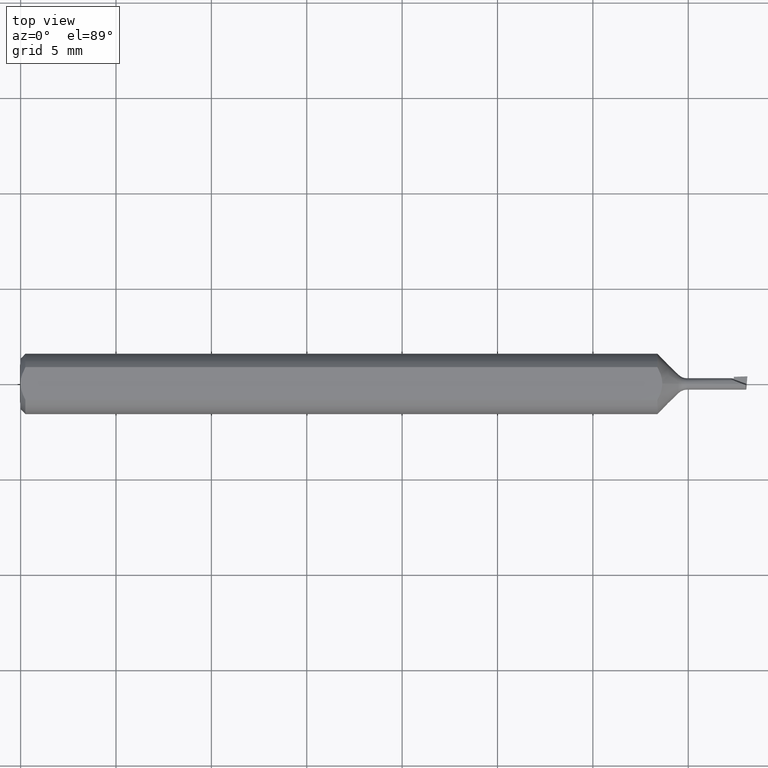
[diagram: clean part render]
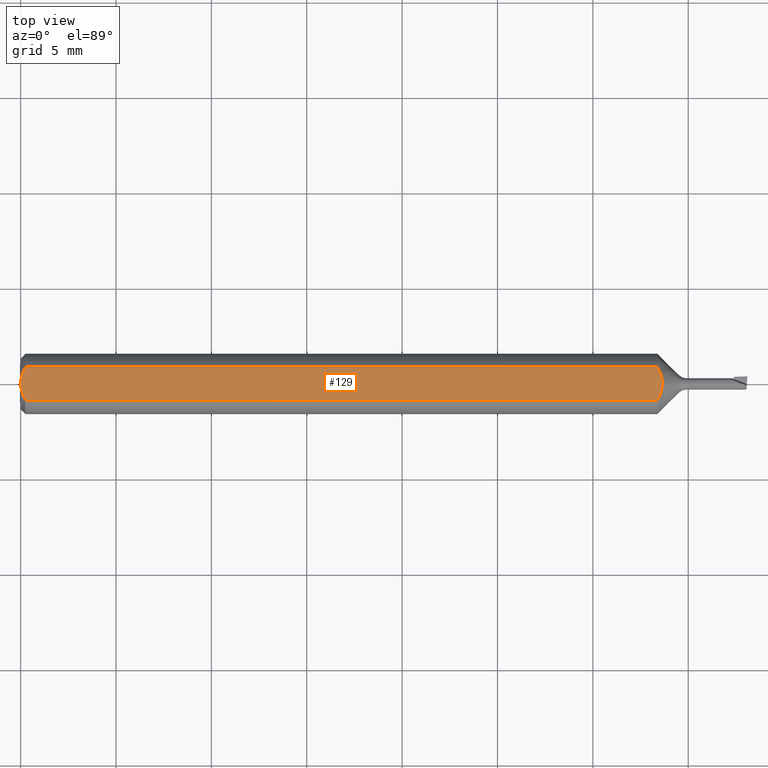
[diagram: same view with one face highlighted and labeled with its STEP entity id]
A machine part, top view. The second image highlights one B-rep face of the part: STEP entity #129.
In plain terms, the highlighted planar face has unit normal (0, 0, -1).
Its self-contained STEP definition (entity closure, byte-faithful):
#17 = EDGE_CURVE ( 'NONE', #702, #86, #183, .T. ) ;
#18 = LINE ( 'NONE', #247, #237 ) ;
#31 = ORIENTED_EDGE ( 'NONE', *, *, #471, .F. ) ;
#34 = CARTESIAN_POINT ( 'NONE',  ( 0.001055043921644571291, -0.01186408073217194367, 0.05235000000000002152 ) ) ;
#65 = CARTESIAN_POINT ( 'NONE',  ( 0.01000000000000839627, -0.03386738844395137393, 0.05235000000000001458 ) ) ;
#86 = VERTEX_POINT ( 'NONE', #379 ) ;
#90 = ORIENTED_EDGE ( 'NONE', *, *, #448, .F. ) ;
#96 = CARTESIAN_POINT ( 'NONE',  ( 0.000000000000000000, 0.03386738844375218604, 0.05235000000000001458 ) ) ;
#105 = ORIENTED_EDGE ( 'NONE', *, *, #218, .T. ) ;
#109 = CARTESIAN_POINT ( 'NONE',  ( 1.323328875033864538, 0.01191462272770363318, 0.05235000000000001458 ) ) ;
#113 = CARTESIAN_POINT ( 'NONE',  ( 1.324399999999999578, 0.005921331895061767055, 0.05235000000000002152 ) ) ;
#124 = B_SPLINE_CURVE_WITH_KNOTS ( 'NONE', 3,
 ( #452, #278, #241, #346, #499, #233 ),
 .UNSPECIFIED., .F., .F.,
 ( 4, 2, 4 ),
 ( 0.0009229516234078819371, 0.001371626545108044562, 0.001820301466808206970 ),
 .UNSPECIFIED. ) ;
#126 = PLANE ( 'NONE',  #396 ) ;
#129 = ADVANCED_FACE ( 'NONE', ( #449 ), #126, .F. ) ;
#141 = CARTESIAN_POINT ( 'NONE',  ( 0.004679365186825696840, -0.02325953974091124130, 0.05235000000000001458 ) ) ;
#145 = VERTEX_POINT ( 'NONE', #549 ) ;
#161 = CARTESIAN_POINT ( 'NONE',  ( 1.317245553868476193, 0.02862871218756115124, 0.05235000000000002152 ) ) ;
#183 = B_SPLINE_CURVE_WITH_KNOTS ( 'NONE', 3,
 ( #645, #161, #542, #109, #113, #539 ),
 .UNSPECIFIED., .F., .F.,
 ( 4, 2, 4 ),
 ( 0.002138043958543064428, 0.002587078562153630537, 0.003036113165764197080 ),
 .UNSPECIFIED. ) ;
#192 = DIRECTION ( 'NONE',  ( -1.000000000000000000, -0.000000000000000000, -0.000000000000000000 ) ) ;
#195 = CARTESIAN_POINT ( 'NONE',  ( 1.319734733031429741, -0.02321402113692512537, 0.05235000000000001458 ) ) ;
#208 = VERTEX_POINT ( 'NONE', #65 ) ;
#218 = EDGE_CURVE ( 'NONE', #145, #425, #124, .T. ) ;
#233 = CARTESIAN_POINT ( 'NONE',  ( 0.000000000000000000, 0.000000000000000000, 0.05235000000000033377 ) ) ;
#237 = VECTOR ( 'NONE', #192, 39.37007874015748143 ) ;
#241 = CARTESIAN_POINT ( 'NONE',  ( 0.004671770759546766197, 0.02323517832780104542, 0.05235000000000002152 ) ) ;
#243 = CARTESIAN_POINT ( 'NONE',  ( 1.324400000000000022, -1.923771709464471706E-20, 0.05235000000000001458 ) ) ;
#247 = CARTESIAN_POINT ( 'NONE',  ( 0.000000000000000000, -0.03386738844375218604, 0.05235000000000001458 ) ) ;
#254 = ORIENTED_EDGE ( 'NONE', *, *, #17, .F. ) ;
#260 = CARTESIAN_POINT ( 'NONE',  ( 0.007163450771416175755, -0.02864528976632487248, 0.05235000000000002152 ) ) ;
#273 = VECTOR ( 'NONE', #643, 39.37007874015748143 ) ;
#278 = CARTESIAN_POINT ( 'NONE',  ( 0.007185421074056197802, 0.02868573718286559354, 0.05235000000000002152 ) ) ;
#303 = CARTESIAN_POINT ( 'NONE',  ( 1.314400000000000013, -0.03386738844375218604, 0.05235000000000001458 ) ) ;
#311 = ORIENTED_EDGE ( 'NONE', *, *, #638, .T. ) ;
#318 = CARTESIAN_POINT ( 'NONE',  ( 1.314400000000000013, -0.03386738844375218604, 0.05235000000000001458 ) ) ;
#336 = EDGE_CURVE ( 'NONE', #86, #469, #558, .T. ) ;
#346 = CARTESIAN_POINT ( 'NONE',  ( 0.001063697276021360232, 0.01189177144351692694, 0.05235000000000001458 ) ) ;
#374 = ORIENTED_EDGE ( 'NONE', *, *, #336, .F. ) ;
#379 = CARTESIAN_POINT ( 'NONE',  ( 1.324400000000000022, -1.923771709464471706E-20, 0.05235000000000001458 ) ) ;
#393 = DIRECTION ( 'NONE',  ( 0.000000000000000000, 0.000000000000000000, -1.000000000000000000 ) ) ;
#396 = AXIS2_PLACEMENT_3D ( 'NONE', #399, #393, #446 ) ;
#399 = CARTESIAN_POINT ( 'NONE',  ( 1.500000000000000444, 0.06235000000000000264, 0.05235000000000001458 ) ) ;
#419 = CARTESIAN_POINT ( 'NONE',  ( 0.01000000000000839627, -0.03386738844395137393, 0.05235000000000001458 ) ) ;
#425 = VERTEX_POINT ( 'NONE', #598 ) ;
#446 = DIRECTION ( 'NONE',  ( -1.000000000000000000, 0.000000000000000000, -0.000000000000000000 ) ) ;
#448 = EDGE_CURVE ( 'NONE', #145, #702, #580, .T. ) ;
#449 = FACE_OUTER_BOUND ( 'NONE', #488, .T. ) ;
#452 = CARTESIAN_POINT ( 'NONE',  ( 0.009999999999999882247, 0.03386738844375217217, 0.05235000000000001458 ) ) ;
#469 = VERTEX_POINT ( 'NONE', #318 ) ;
#471 = EDGE_CURVE ( 'NONE', #469, #208, #18, .T. ) ;
#480 = CARTESIAN_POINT ( 'NONE',  ( 1.323328236633305011, -0.01191784003313683775, 0.05235000000000002152 ) ) ;
#488 = EDGE_LOOP ( 'NONE', ( #90, #105, #311, #31, #374, #254 ) ) ;
#499 = CARTESIAN_POINT ( 'NONE',  ( -1.099442095985316055E-15, 0.005954997531773975616, 0.05235000000000002152 ) ) ;
#509 = CARTESIAN_POINT ( 'NONE',  ( -1.070637973615595209E-15, -0.005965286321711172658, 0.05235000000000002152 ) ) ;
#516 = CARTESIAN_POINT ( 'NONE',  ( 1.324400000000000022, -0.005923251185922118883, 0.05235000000000002152 ) ) ;
#539 = CARTESIAN_POINT ( 'NONE',  ( 1.324400000000000022, -1.923771709464471706E-20, 0.05235000000000001458 ) ) ;
#542 = CARTESIAN_POINT ( 'NONE',  ( 1.319736758639427743, 0.02320886323228526019, 0.05235000000000002152 ) ) ;
#549 = CARTESIAN_POINT ( 'NONE',  ( 0.009999999999999882247, 0.03386738844375217217, 0.05235000000000001458 ) ) ;
#558 = B_SPLINE_CURVE_WITH_KNOTS ( 'NONE', 3,
 ( #243, #516, #480, #195, #674, #303 ),
 .UNSPECIFIED., .F., .F.,
 ( 4, 2, 4 ),
 ( 0.003036113165764197080, 0.003485293315685289960, 0.003934473465606382406 ),
 .UNSPECIFIED. ) ;
#580 = LINE ( 'NONE', #96, #273 ) ;
#598 = CARTESIAN_POINT ( 'NONE',  ( 0.000000000000000000, 0.000000000000000000, 0.05235000000000033377 ) ) ;
#599 = B_SPLINE_CURVE_WITH_KNOTS ( 'NONE', 3,
 ( #605, #509, #34, #141, #260, #419 ),
 .UNSPECIFIED., .F., .F.,
 ( 4, 2, 4 ),
 ( 0.001820301466808206970, 0.002269751589840480685, 0.002719201712872753966 ),
 .UNSPECIFIED. ) ;
#605 = CARTESIAN_POINT ( 'NONE',  ( 0.000000000000000000, 0.000000000000000000, 0.05235000000000033377 ) ) ;
#613 = CARTESIAN_POINT ( 'NONE',  ( 1.314400000000000013, 0.03386738844375218604, 0.05235000000000001458 ) ) ;
#638 = EDGE_CURVE ( 'NONE', #425, #208, #599, .T. ) ;
#643 = DIRECTION ( 'NONE',  ( 1.000000000000000000, 0.000000000000000000, 0.000000000000000000 ) ) ;
#645 = CARTESIAN_POINT ( 'NONE',  ( 1.314400000000000013, 0.03386738844375218604, 0.05235000000000001458 ) ) ;
#674 = CARTESIAN_POINT ( 'NONE',  ( 1.317246058472921977, -0.02862778320872364293, 0.05235000000000002152 ) ) ;
#702 = VERTEX_POINT ( 'NONE', #613 ) ;